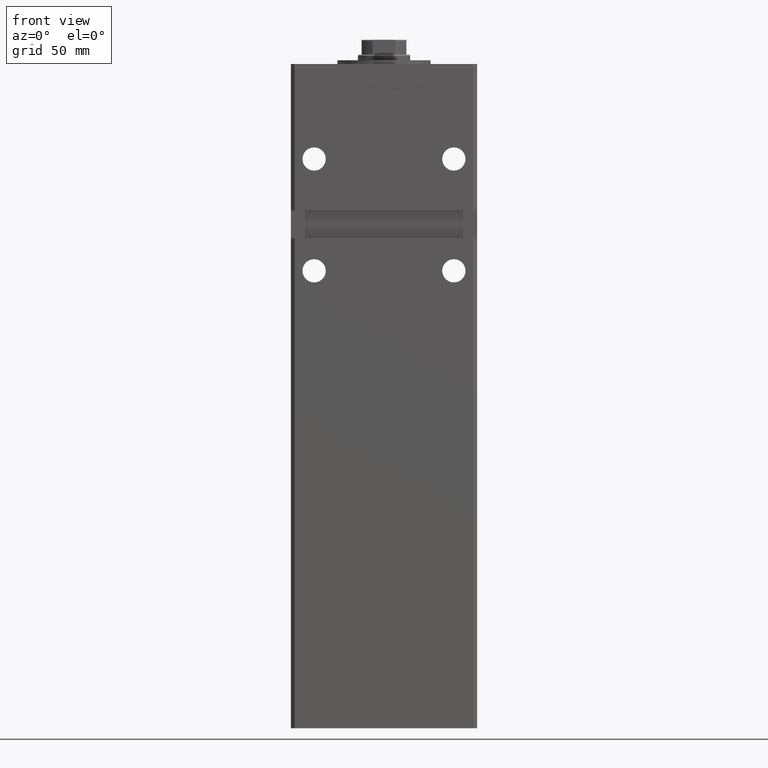
[diagram: clean part render]
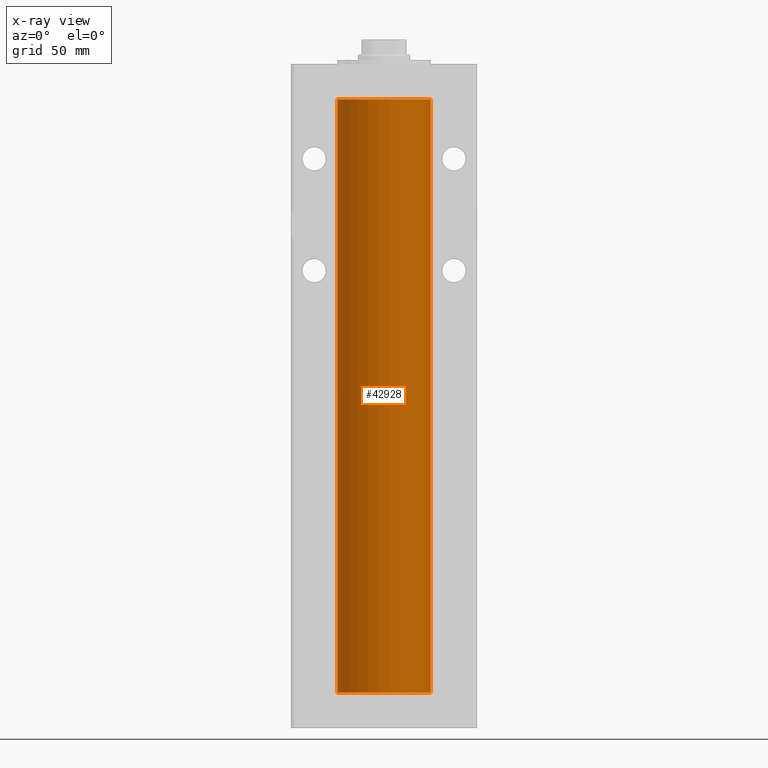
[diagram: x-ray — body ghosted, one internal face saturated and labeled with its STEP entity id]
A machine part, front view, then the same camera in x-ray: the body is ghosted and one INTERNAL B-rep face — a face not visible from any outside direction — is saturated and labeled: STEP entity #42928.
In plain terms, the highlighted cylindrical surface (partial cylindrical patch) has radius 25 mm, axis along (-0, -0, -1).
Its self-contained STEP definition (entity closure, byte-faithful):
#664 = EDGE_CURVE ( 'NONE', #13171, #15876, #860, .T. ) ;
#860 = CIRCLE ( 'NONE', #6866, 25.00000000000000000 ) ;
#4185 = ORIENTED_EDGE ( 'NONE', *, *, #10573, .F. ) ;
#5656 = CARTESIAN_POINT ( 'NONE',  ( 0.000000000000000000, 0.000000000000000000, 318.5000000000000000 ) ) ;
#6866 = AXIS2_PLACEMENT_3D ( 'NONE', #28705, #45157, #8273 ) ;
#8194 = CARTESIAN_POINT ( 'NONE',  ( 0.000000000000000000, 0.000000000000000000, 0.000000000000000000 ) ) ;
#8273 = DIRECTION ( 'NONE',  ( 1.000000000000000000, 0.000000000000000000, 0.000000000000000000 ) ) ;
#8946 = CARTESIAN_POINT ( 'NONE',  ( -25.00000000000000000, 0.000000000000000000, 318.5000000000000000 ) ) ;
#10573 = EDGE_CURVE ( 'NONE', #37333, #48730, #15622, .T. ) ;
#13171 = VERTEX_POINT ( 'NONE', #8946 ) ;
#13714 = CYLINDRICAL_SURFACE ( 'NONE', #47723, 25.00000000000000000 ) ;
#15615 = CARTESIAN_POINT ( 'NONE',  ( 25.00000000000000000, 3.061616997868383043E-15, 0.000000000000000000 ) ) ;
#15622 = CIRCLE ( 'NONE', #37141, 25.00000000000000000 ) ;
#15876 = VERTEX_POINT ( 'NONE', #21495 ) ;
#20858 = EDGE_LOOP ( 'NONE', ( #29147, #24627, #4185, #51645 ) ) ;
#21268 = DIRECTION ( 'NONE',  ( -1.000000000000000000, 0.000000000000000000, 0.000000000000000000 ) ) ;
#21495 = CARTESIAN_POINT ( 'NONE',  ( 25.00000000000000000, 3.061616997868383043E-15, 318.5000000000000000 ) ) ;
#22873 = VECTOR ( 'NONE', #46772, 1000.000000000000000 ) ;
#23652 = VECTOR ( 'NONE', #41580, 1000.000000000000000 ) ;
#24595 = DIRECTION ( 'NONE',  ( -0.000000000000000000, 0.000000000000000000, 1.000000000000000000 ) ) ;
#24627 = ORIENTED_EDGE ( 'NONE', *, *, #43540, .T. ) ;
#24857 = DIRECTION ( 'NONE',  ( 1.000000000000000000, 0.000000000000000000, 0.000000000000000000 ) ) ;
#25053 = DIRECTION ( 'NONE',  ( -0.000000000000000000, -0.000000000000000000, -1.000000000000000000 ) ) ;
#25572 = FACE_OUTER_BOUND ( 'NONE', #20858, .T. ) ;
#27292 = CARTESIAN_POINT ( 'NONE',  ( -25.00000000000000000, 0.000000000000000000, 0.000000000000000000 ) ) ;
#28705 = CARTESIAN_POINT ( 'NONE',  ( 0.000000000000000000, 0.000000000000000000, 318.5000000000000000 ) ) ;
#29147 = ORIENTED_EDGE ( 'NONE', *, *, #664, .T. ) ;
#32946 = CARTESIAN_POINT ( 'NONE',  ( 25.00000000000000000, 3.061616997868383043E-15, 318.5000000000000000 ) ) ;
#34373 = LINE ( 'NONE', #50802, #22873 ) ;
#37141 = AXIS2_PLACEMENT_3D ( 'NONE', #8194, #24595, #24857 ) ;
#37333 = VERTEX_POINT ( 'NONE', #27292 ) ;
#40783 = LINE ( 'NONE', #32946, #23652 ) ;
#41580 = DIRECTION ( 'NONE',  ( -0.000000000000000000, -0.000000000000000000, -1.000000000000000000 ) ) ;
#42928 = ADVANCED_FACE ( 'NONE', ( #25572 ), #13714, .F. ) ;
#43540 = EDGE_CURVE ( 'NONE', #15876, #48730, #40783, .T. ) ;
#45157 = DIRECTION ( 'NONE',  ( -0.000000000000000000, 0.000000000000000000, 1.000000000000000000 ) ) ;
#45643 = EDGE_CURVE ( 'NONE', #13171, #37333, #34373, .T. ) ;
#46772 = DIRECTION ( 'NONE',  ( -0.000000000000000000, -0.000000000000000000, -1.000000000000000000 ) ) ;
#47723 = AXIS2_PLACEMENT_3D ( 'NONE', #5656, #25053, #21268 ) ;
#48730 = VERTEX_POINT ( 'NONE', #15615 ) ;
#50802 = CARTESIAN_POINT ( 'NONE',  ( -25.00000000000000000, 0.000000000000000000, 318.5000000000000000 ) ) ;
#51645 = ORIENTED_EDGE ( 'NONE', *, *, #45643, .F. ) ;